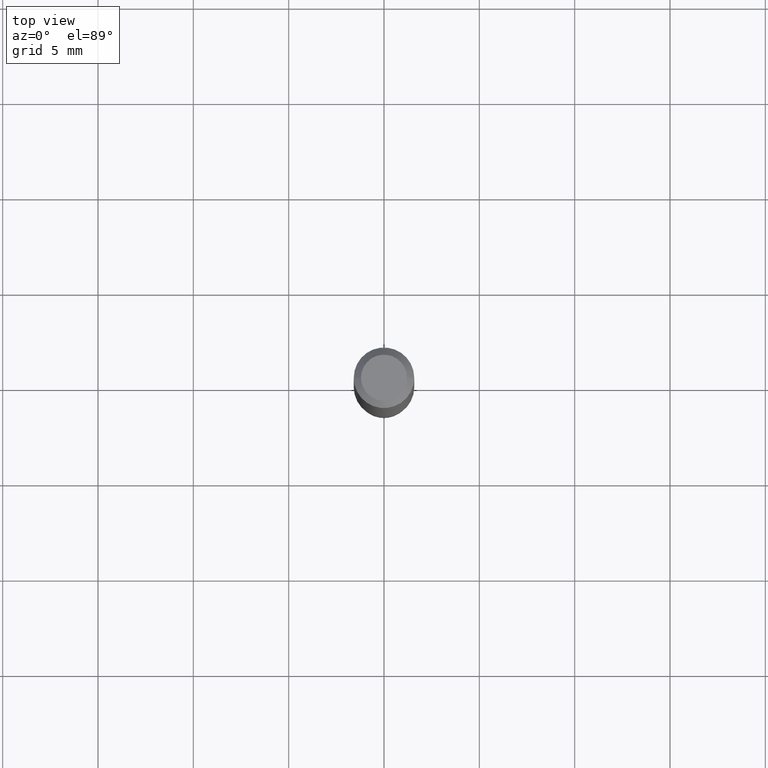
[diagram: clean part render]
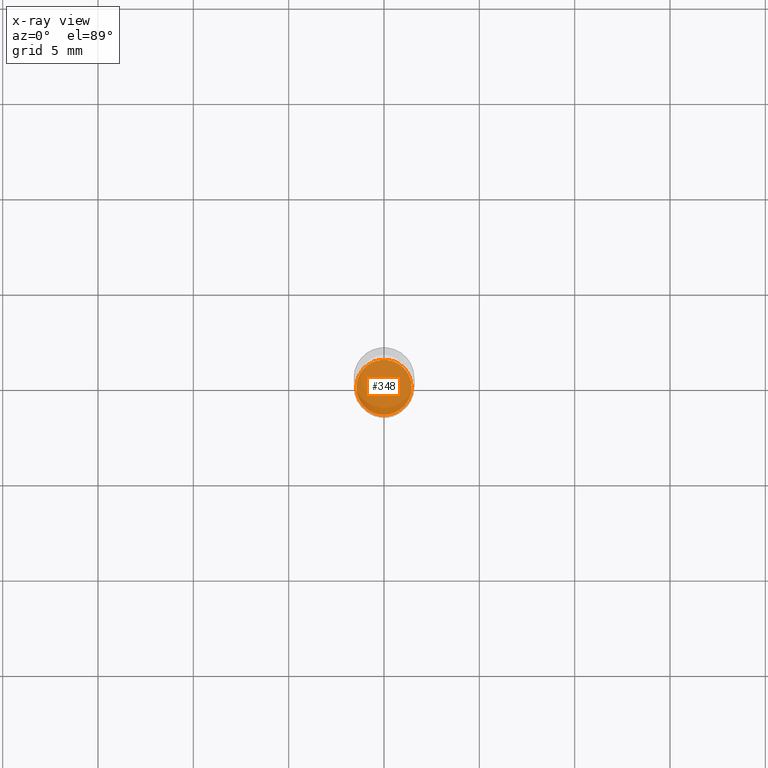
[diagram: x-ray — body ghosted, one internal face saturated and labeled with its STEP entity id]
A machine part, top view, then the same camera in x-ray: the body is ghosted and one INTERNAL B-rep face — a face not visible from any outside direction — is saturated and labeled: STEP entity #348.
In plain terms, the highlighted planar face has unit normal (-0, 0, 1).
Its self-contained STEP definition (entity closure, byte-faithful):
#10 = AXIS2_PLACEMENT_3D ( 'NONE', #233, #103, #422 ) ;
#22 = DIRECTION ( 'NONE',  ( -2.445468806185136597E-29, 3.491481338843145583E-15, 1.000000000000000000 ) ) ;
#23 = EDGE_CURVE ( 'NONE', #112, #77, #219, .T. ) ;
#39 = PLANE ( 'NONE',  #279 ) ;
#77 = VERTEX_POINT ( 'NONE', #198 ) ;
#103 = DIRECTION ( 'NONE',  ( -2.445468806185136597E-29, 3.491481338843145583E-15, 1.000000000000000000 ) ) ;
#112 = VERTEX_POINT ( 'NONE', #119 ) ;
#119 = CARTESIAN_POINT ( 'NONE',  ( 0.05699999999999997430, -4.430689818991950396E-15, -1.155000000000000027 ) ) ;
#181 = DIRECTION ( 'NONE',  ( 1.000000000000000000, -6.982962677686268288E-15, 0.000000000000000000 ) ) ;
#198 = CARTESIAN_POINT ( 'NONE',  ( -0.05699999999999997430, -3.625002359806465505E-15, -1.155000000000000027 ) ) ;
#202 = DIRECTION ( 'NONE',  ( -2.438088387897960049E-29, 3.491481338843145188E-15, 1.000000000000000000 ) ) ;
#219 = CIRCLE ( 'NONE', #10, 0.05699999999999997430 ) ;
#225 = CARTESIAN_POINT ( 'NONE',  ( 2.824516471143833307E-29, -4.032660946363833383E-15, -1.155000000000000027 ) ) ;
#232 = EDGE_CURVE ( 'NONE', #77, #112, #363, .T. ) ;
#233 = CARTESIAN_POINT ( 'NONE',  ( 2.824516471143833307E-29, -4.032660946363833383E-15, -1.155000000000000027 ) ) ;
#240 = ORIENTED_EDGE ( 'NONE', *, *, #23, .F. ) ;
#274 = ORIENTED_EDGE ( 'NONE', *, *, #232, .F. ) ;
#279 = AXIS2_PLACEMENT_3D ( 'NONE', #483, #202, #451 ) ;
#295 = FACE_OUTER_BOUND ( 'NONE', #444, .T. ) ;
#348 = ADVANCED_FACE ( 'NONE', ( #295 ), #39, .F. ) ;
#363 = CIRCLE ( 'NONE', #416, 0.05699999999999997430 ) ;
#416 = AXIS2_PLACEMENT_3D ( 'NONE', #225, #22, #181 ) ;
#422 = DIRECTION ( 'NONE',  ( 1.000000000000000000, -6.982962677686268288E-15, 0.000000000000000000 ) ) ;
#444 = EDGE_LOOP ( 'NONE', ( #240, #274 ) ) ;
#451 = DIRECTION ( 'NONE',  ( 1.000000000000000000, -6.982962677686265922E-15, 4.876176775795935793E-29 ) ) ;
#483 = CARTESIAN_POINT ( 'NONE',  ( 2.824516471143833307E-29, -4.032660946363833383E-15, -1.155000000000000027 ) ) ;